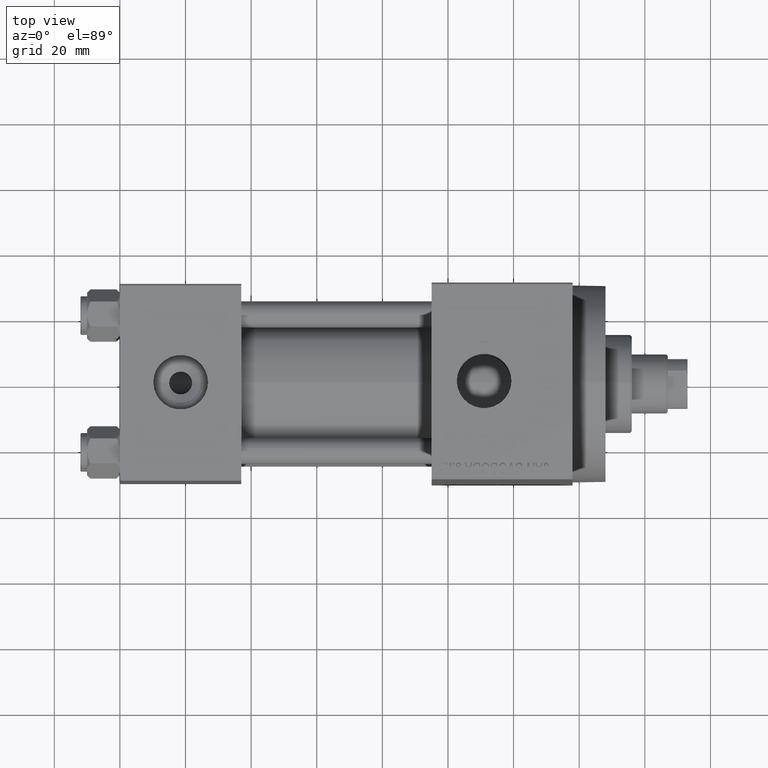
[diagram: clean part render]
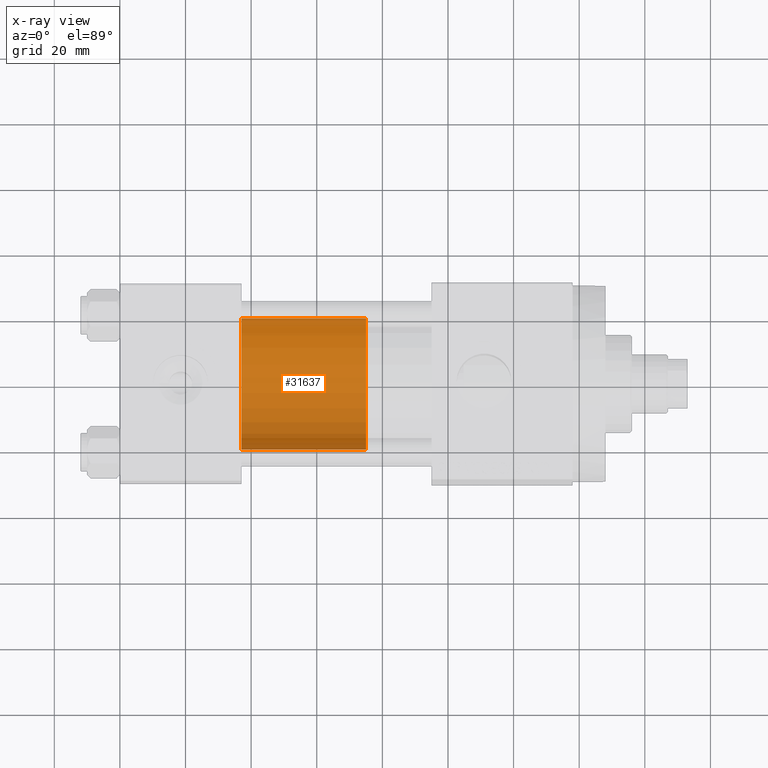
[diagram: x-ray — body ghosted, one internal face saturated and labeled with its STEP entity id]
A machine part, top view, then the same camera in x-ray: the body is ghosted and one INTERNAL B-rep face — a face not visible from any outside direction — is saturated and labeled: STEP entity #31637.
In plain terms, the highlighted cylindrical surface (partial cylindrical patch) has radius 20 mm, axis along (-1, 0, 0).
Its self-contained STEP definition (entity closure, byte-faithful):
#264 = CYLINDRICAL_SURFACE ( 'NONE', #32488, 20.00000000000000000 ) ;
#451 = CARTESIAN_POINT ( 'NONE',  ( 0.000000000000000000, 0.000000000000000000, 0.000000000000000000 ) ) ;
#1801 = EDGE_LOOP ( 'NONE', ( #43810, #39847, #19000, #47263 ) ) ;
#1882 = EDGE_CURVE ( 'NONE', #34264, #33755, #11864, .T. ) ;
#2642 = EDGE_CURVE ( 'NONE', #45612, #13177, #27142, .T. ) ;
#3051 = CARTESIAN_POINT ( 'NONE',  ( 20.00000000000000000, 2.449293598294706513E-15, 38.00000000000000000 ) ) ;
#3208 = LINE ( 'NONE', #22322, #44083 ) ;
#3855 = CARTESIAN_POINT ( 'NONE',  ( 0.000000000000000000, 0.000000000000000000, 38.00000000000000000 ) ) ;
#8756 = CARTESIAN_POINT ( 'NONE',  ( 0.000000000000000000, 0.000000000000000000, 38.00000000000000000 ) ) ;
#11764 = EDGE_CURVE ( 'NONE', #33755, #13177, #3208, .T. ) ;
#11864 = CIRCLE ( 'NONE', #40067, 20.00000000000000000 ) ;
#12161 = FACE_OUTER_BOUND ( 'NONE', #1801, .T. ) ;
#13115 = VECTOR ( 'NONE', #13552, 1000.000000000000000 ) ;
#13177 = VERTEX_POINT ( 'NONE', #46322 ) ;
#13235 = CARTESIAN_POINT ( 'NONE',  ( 20.00000000000000000, 2.449293598294706513E-15, 0.000000000000000000 ) ) ;
#13552 = DIRECTION ( 'NONE',  ( -0.000000000000000000, -0.000000000000000000, -1.000000000000000000 ) ) ;
#15679 = DIRECTION ( 'NONE',  ( 1.000000000000000000, 0.000000000000000000, 0.000000000000000000 ) ) ;
#18239 = DIRECTION ( 'NONE',  ( -0.000000000000000000, -0.000000000000000000, -1.000000000000000000 ) ) ;
#19000 = ORIENTED_EDGE ( 'NONE', *, *, #2642, .T. ) ;
#20283 = AXIS2_PLACEMENT_3D ( 'NONE', #451, #40326, #22652 ) ;
#20953 = CARTESIAN_POINT ( 'NONE',  ( 20.00000000000000000, 2.449293598294706513E-15, 38.00000000000000000 ) ) ;
#22322 = CARTESIAN_POINT ( 'NONE',  ( -20.00000000000000000, 0.000000000000000000, 38.00000000000000000 ) ) ;
#22652 = DIRECTION ( 'NONE',  ( 1.000000000000000000, 0.000000000000000000, 0.000000000000000000 ) ) ;
#25423 = EDGE_CURVE ( 'NONE', #34264, #45612, #35997, .T. ) ;
#27142 = CIRCLE ( 'NONE', #20283, 20.00000000000000000 ) ;
#31637 = ADVANCED_FACE ( 'NONE', ( #12161 ), #264, .T. ) ;
#32488 = AXIS2_PLACEMENT_3D ( 'NONE', #3855, #40837, #37486 ) ;
#33755 = VERTEX_POINT ( 'NONE', #40865 ) ;
#33850 = DIRECTION ( 'NONE',  ( 0.000000000000000000, 0.000000000000000000, 1.000000000000000000 ) ) ;
#34264 = VERTEX_POINT ( 'NONE', #3051 ) ;
#35997 = LINE ( 'NONE', #20953, #13115 ) ;
#37486 = DIRECTION ( 'NONE',  ( -1.000000000000000000, 0.000000000000000000, 0.000000000000000000 ) ) ;
#39847 = ORIENTED_EDGE ( 'NONE', *, *, #25423, .T. ) ;
#40067 = AXIS2_PLACEMENT_3D ( 'NONE', #8756, #33850, #15679 ) ;
#40326 = DIRECTION ( 'NONE',  ( 0.000000000000000000, 0.000000000000000000, 1.000000000000000000 ) ) ;
#40837 = DIRECTION ( 'NONE',  ( -0.000000000000000000, -0.000000000000000000, -1.000000000000000000 ) ) ;
#40865 = CARTESIAN_POINT ( 'NONE',  ( -20.00000000000000000, 0.000000000000000000, 38.00000000000000000 ) ) ;
#43810 = ORIENTED_EDGE ( 'NONE', *, *, #1882, .F. ) ;
#44083 = VECTOR ( 'NONE', #18239, 1000.000000000000000 ) ;
#45612 = VERTEX_POINT ( 'NONE', #13235 ) ;
#46322 = CARTESIAN_POINT ( 'NONE',  ( -20.00000000000000000, 0.000000000000000000, 0.000000000000000000 ) ) ;
#47263 = ORIENTED_EDGE ( 'NONE', *, *, #11764, .F. ) ;